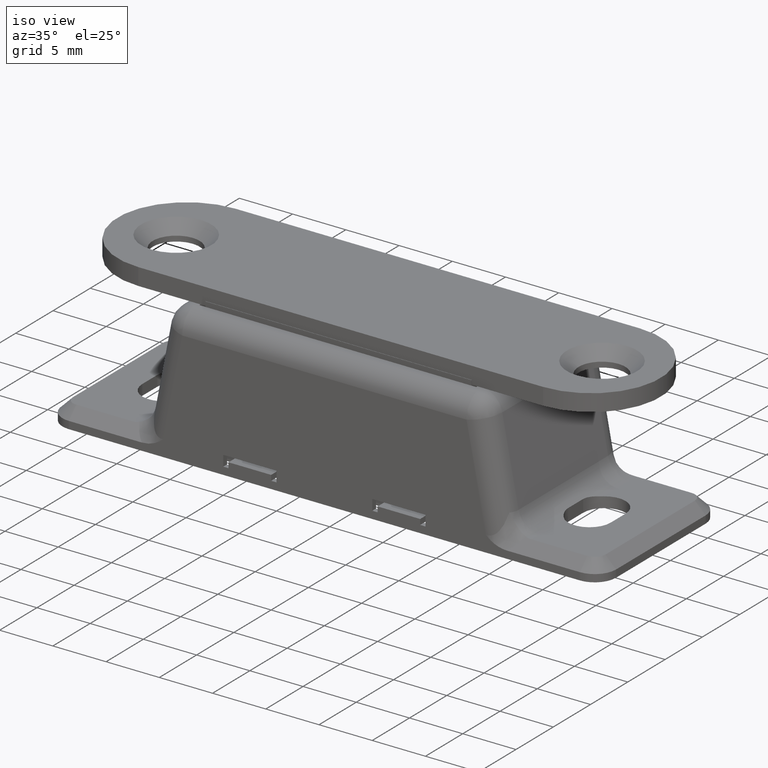
[diagram: clean part render]
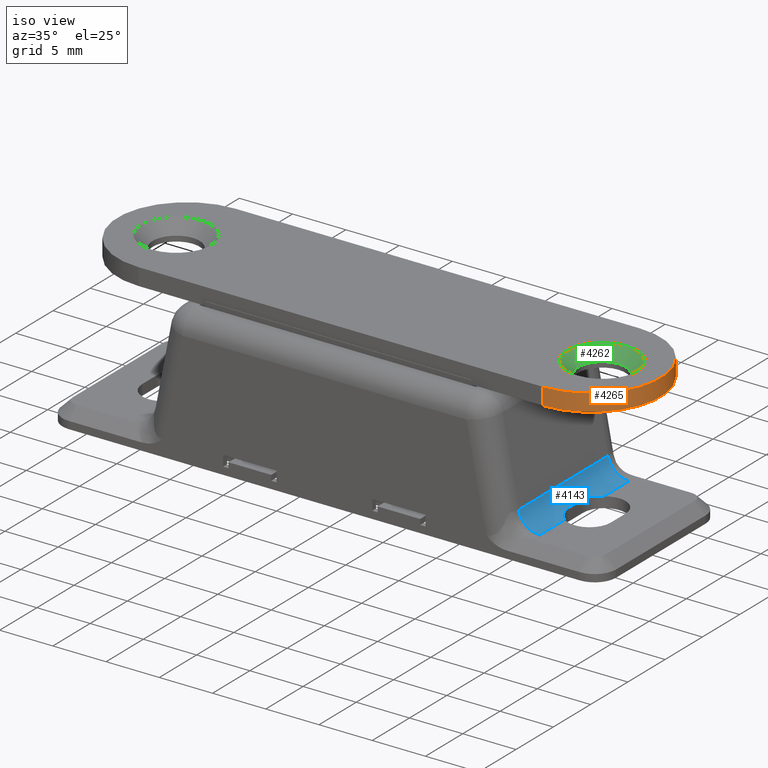
[diagram: same view with three faces highlighted in distinct colors, each labeled with its STEP entity id]
A machine part, iso view with three faces highlighted in distinct colors.
Their STEP definitions:

[orange] entity #4265 — the highlighted cylindrical surface (partial cylindrical patch) has radius 6.5 mm, axis along (0, 0, 1).
#211=CYLINDRICAL_SURFACE('',#4620,6.5);
#311=CIRCLE('',#4621,6.5);
#312=CIRCLE('',#4622,6.5);
#541=FACE_OUTER_BOUND('',#793,.T.);
#793=EDGE_LOOP('',(#3866,#3867,#3868,#3869));
#1237=LINE('',#7601,#1677);
#1238=LINE('',#7607,#1678);
#1677=VECTOR('',#5751,1.6);
#1678=VECTOR('',#5758,1.6);
#2064=VERTEX_POINT('',#7594);
#2067=VERTEX_POINT('',#7599);
#2068=VERTEX_POINT('',#7603);
#2069=VERTEX_POINT('',#7605);
#2669=EDGE_CURVE('',#2064,#2067,#1237,.T.);
#2670=EDGE_CURVE('',#2068,#2064,#311,.T.);
#2671=EDGE_CURVE('',#2069,#2067,#312,.T.);
#2672=EDGE_CURVE('',#2068,#2069,#1238,.T.);
#3866=ORIENTED_EDGE('',*,*,#2670,.T.);
#3867=ORIENTED_EDGE('',*,*,#2669,.T.);
#3868=ORIENTED_EDGE('',*,*,#2671,.F.);
#3869=ORIENTED_EDGE('',*,*,#2672,.F.);
#4265=ADVANCED_FACE('',(#541),#211,.T.);
#4620=AXIS2_PLACEMENT_3D('',#7602,#5752,#5753);
#4621=AXIS2_PLACEMENT_3D('',#7604,#5754,#5755);
#4622=AXIS2_PLACEMENT_3D('',#7606,#5756,#5757);
#5751=DIRECTION('',(0.,1.,0.));
#5752=DIRECTION('center_axis',(0.,1.,0.));
#5753=DIRECTION('ref_axis',(1.,0.,0.));
#5754=DIRECTION('center_axis',(0.,1.,0.));
#5755=DIRECTION('ref_axis',(1.,0.,0.));
#5756=DIRECTION('center_axis',(0.,1.,0.));
#5757=DIRECTION('ref_axis',(1.,0.,0.));
#5758=DIRECTION('',(0.,1.,0.));
#7594=CARTESIAN_POINT('',(-6.5,0.,-19.));
#7599=CARTESIAN_POINT('',(-6.5,1.6,-19.));
#7601=CARTESIAN_POINT('',(-6.5,0.,-19.));
#7602=CARTESIAN_POINT('Origin',(-2.32682891837997E-15,0.,-19.));
#7603=CARTESIAN_POINT('',(6.5,0.,-19.));
#7604=CARTESIAN_POINT('Origin',(-2.32682891837997E-15,0.,-19.));
#7605=CARTESIAN_POINT('',(6.5,1.6,-19.));
#7606=CARTESIAN_POINT('Origin',(-2.32682891837997E-15,1.6,-19.));
#7607=CARTESIAN_POINT('',(6.5,0.,-19.));

[blue] entity #4143 — the highlighted cylindrical surface (edge-blend (fillet) strip) has radius 2 mm, axis along (0, 1, 0).
#110=B_SPLINE_CURVE_WITH_KNOTS('',3,(#6060,#6061,#6062,#6063,#6064,#6065,
#6066,#6067),.UNSPECIFIED.,.F.,.F.,(4,2,2,4),(0.492195487387883,0.590063260642943,
0.638997147270473,0.675624977696198),.UNSPECIFIED.);
#138=B_SPLINE_CURVE_WITH_KNOTS('',3,(#6974,#6975,#6976,#6977,#6978,#6979,
#6980,#6981),.UNSPECIFIED.,.F.,.F.,(4,2,2,4),(0.806061644810372,0.845971654044994,
0.91518131441038,0.984390974775766),.UNSPECIFIED.);
#191=CYLINDRICAL_SURFACE('',#4462,2.);
#276=CIRCLE('',#4460,2.);
#277=CIRCLE('',#4463,2.);
#419=FACE_OUTER_BOUND('',#658,.T.);
#658=EDGE_LOOP('',(#3221,#3222,#3223,#3224,#3225,#3226,#3227,#3228));
#909=LINE('',#6051,#1349);
#973=LINE('',#6631,#1413);
#985=LINE('',#6983,#1425);
#986=LINE('',#6985,#1426);
#1349=VECTOR('',#4843,2.);
#1413=VECTOR('',#5123,12.);
#1425=VECTOR('',#5185,3.39529863514702);
#1426=VECTOR('',#5188,3.39529863514701);
#1772=VERTEX_POINT('',#6048);
#1773=VERTEX_POINT('',#6050);
#1776=VERTEX_POINT('',#6058);
#1850=VERTEX_POINT('',#6628);
#1851=VERTEX_POINT('',#6630);
#1880=VERTEX_POINT('',#6913);
#1883=VERTEX_POINT('',#6973);
#1884=VERTEX_POINT('',#6982);
#2196=EDGE_CURVE('',#1773,#1772,#909,.T.);
#2201=EDGE_CURVE('',#1776,#1772,#110,.F.);
#2335=EDGE_CURVE('',#1851,#1850,#973,.T.);
#2374=EDGE_CURVE('',#1880,#1850,#276,.T.);
#2379=EDGE_CURVE('',#1883,#1773,#138,.T.);
#2380=EDGE_CURVE('',#1776,#1884,#985,.T.);
#2381=EDGE_CURVE('',#1884,#1851,#277,.T.);
#2382=EDGE_CURVE('',#1880,#1883,#986,.T.);
#3221=ORIENTED_EDGE('',*,*,#2379,.T.);
#3222=ORIENTED_EDGE('',*,*,#2196,.T.);
#3223=ORIENTED_EDGE('',*,*,#2201,.F.);
#3224=ORIENTED_EDGE('',*,*,#2380,.T.);
#3225=ORIENTED_EDGE('',*,*,#2381,.T.);
#3226=ORIENTED_EDGE('',*,*,#2335,.T.);
#3227=ORIENTED_EDGE('',*,*,#2374,.F.);
#3228=ORIENTED_EDGE('',*,*,#2382,.T.);
#4143=ADVANCED_FACE('',(#419),#191,.F.);
#4460=AXIS2_PLACEMENT_3D('',#6915,#5179,#5180);
#4462=AXIS2_PLACEMENT_3D('',#6972,#5183,#5184);
#4463=AXIS2_PLACEMENT_3D('',#6984,#5186,#5187);
#4843=DIRECTION('',(0.,1.,0.));
#5123=DIRECTION('',(0.,-1.,0.));
#5179=DIRECTION('center_axis',(5.65501365154662E-16,1.,-6.27832636051664E-31));
#5180=DIRECTION('ref_axis',(-1.11022302462516E-15,1.92678538844662E-45,
-1.));
#5183=DIRECTION('center_axis',(0.,1.,0.));
#5184=DIRECTION('ref_axis',(-0.636078220277757,0.,-0.771624583387726));
#5185=DIRECTION('',(0.,1.,0.));
#5186=DIRECTION('center_axis',(0.,1.,0.));
#5187=DIRECTION('ref_axis',(-1.11022302462516E-15,0.,-1.));
#5188=DIRECTION('',(0.,1.,0.));
#6048=CARTESIAN_POINT('',(18.,1.,1.8697296215844));
#6050=CARTESIAN_POINT('',(18.,-1.,1.8697296215844));
#6051=CARTESIAN_POINT('',(18.,0.,1.8697296215844));
#6058=CARTESIAN_POINT('',(18.8062942030638,2.60470136485298,1.70000000000002));
#6060=CARTESIAN_POINT('Ctrl Pts',(18.,1.,1.86972962158442));
#6061=CARTESIAN_POINT('Ctrl Pts',(18.,1.3262259108502,1.86972962158442));
#6062=CARTESIAN_POINT('Ctrl Pts',(18.0832617133247,1.66093145277691,1.82795197267034));
#6063=CARTESIAN_POINT('Ctrl Pts',(18.3211967135254,2.09968167001942,1.75796126508846));
#6064=CARTESIAN_POINT('Ctrl Pts',(18.4189146406968,2.23596535176667,1.73457193489048));
#6065=CARTESIAN_POINT('Ctrl Pts',(18.6155010815791,2.44862937983647,1.70732556388155));
#6066=CARTESIAN_POINT('Ctrl Pts',(18.7078769167882,2.53149068047324,1.70000000000001));
#6067=CARTESIAN_POINT('Ctrl Pts',(18.8062942030638,2.60470136485296,1.70000000000001));
#6628=CARTESIAN_POINT('',(16.8430398361685,-6.,3.31838200924689));
#6630=CARTESIAN_POINT('',(16.8430398361685,6.,3.31838200924689));
#6631=CARTESIAN_POINT('',(16.8430398361685,0.,3.31838200924688));
#6913=CARTESIAN_POINT('',(18.8062942030639,-6.,1.70000000000001));
#6915=CARTESIAN_POINT('Origin',(18.8062942030639,-6.,3.70000000000001));
#6972=CARTESIAN_POINT('Origin',(18.8062942030639,0.,3.70000000000001));
#6973=CARTESIAN_POINT('',(18.8062942030638,-2.60470136485299,1.70000000000002));
#6974=CARTESIAN_POINT('Ctrl Pts',(18.8062942030638,-2.60470136485296,1.70000000000001));
#6975=CARTESIAN_POINT('Ctrl Pts',(18.6906988845438,-2.51871228000619,1.70000000000001));
#6976=CARTESIAN_POINT('Ctrl Pts',(18.5817134066206,-2.41632344380331,1.71069321452386));
#6977=CARTESIAN_POINT('Ctrl Pts',(18.3435272881605,-2.14400699297524,1.74827326477669));
#6978=CARTESIAN_POINT('Ctrl Pts',(18.2140922596288,-1.93274148252208,1.7875057943619));
#6979=CARTESIAN_POINT('Ctrl Pts',(18.0422858108955,-1.47626343200348,1.8494245111403));
#6980=CARTESIAN_POINT('Ctrl Pts',(18.,-1.23069886788462,1.86972962158442));
#6981=CARTESIAN_POINT('Ctrl Pts',(18.,-1.,1.86972962158442));
#6982=CARTESIAN_POINT('',(18.8062942030638,6.,1.70000000000001));
#6983=CARTESIAN_POINT('',(18.8062942030638,0.,1.70000000000001));
#6984=CARTESIAN_POINT('Origin',(18.8062942030639,6.,3.70000000000001));
#6985=CARTESIAN_POINT('',(18.8062942030638,0.,1.70000000000001));

[green] entity #4262 — the highlighted conical surface has half-angle 45 deg.
#51=CONICAL_SURFACE('',#4614,2.75,45.);
#159=FACE_BOUND('',#789,.T.);
#308=CIRCLE('',#4615,3.3);
#309=CIRCLE('',#4616,2.2);
#538=FACE_OUTER_BOUND('',#788,.T.);
#788=EDGE_LOOP('',(#3858));
#789=EDGE_LOOP('',(#3859));
#2061=VERTEX_POINT('',#7586);
#2062=VERTEX_POINT('',#7588);
#2663=EDGE_CURVE('',#2061,#2061,#308,.T.);
#2664=EDGE_CURVE('',#2062,#2062,#309,.T.);
#3858=ORIENTED_EDGE('',*,*,#2663,.F.);
#3859=ORIENTED_EDGE('',*,*,#2664,.F.);
#4262=ADVANCED_FACE('',(#538,#159),#51,.F.);
#4614=AXIS2_PLACEMENT_3D('',#7585,#5736,#5737);
#4615=AXIS2_PLACEMENT_3D('',#7587,#5738,#5739);
#4616=AXIS2_PLACEMENT_3D('',#7589,#5740,#5741);
#5736=DIRECTION('center_axis',(0.,1.,0.));
#5737=DIRECTION('ref_axis',(1.,0.,0.));
#5738=DIRECTION('center_axis',(0.,-1.,0.));
#5739=DIRECTION('ref_axis',(1.,0.,0.));
#5740=DIRECTION('center_axis',(0.,1.,0.));
#5741=DIRECTION('ref_axis',(1.,0.,0.));
#7585=CARTESIAN_POINT('Origin',(-1.97215226305253E-30,1.05,-20.));
#7586=CARTESIAN_POINT('',(3.3,1.6,-20.));
#7587=CARTESIAN_POINT('Origin',(-1.97215226305253E-30,1.6,-20.));
#7588=CARTESIAN_POINT('',(2.2,0.5,-20.));
#7589=CARTESIAN_POINT('Origin',(-1.97215226305253E-30,0.500000000000006,
-20.));